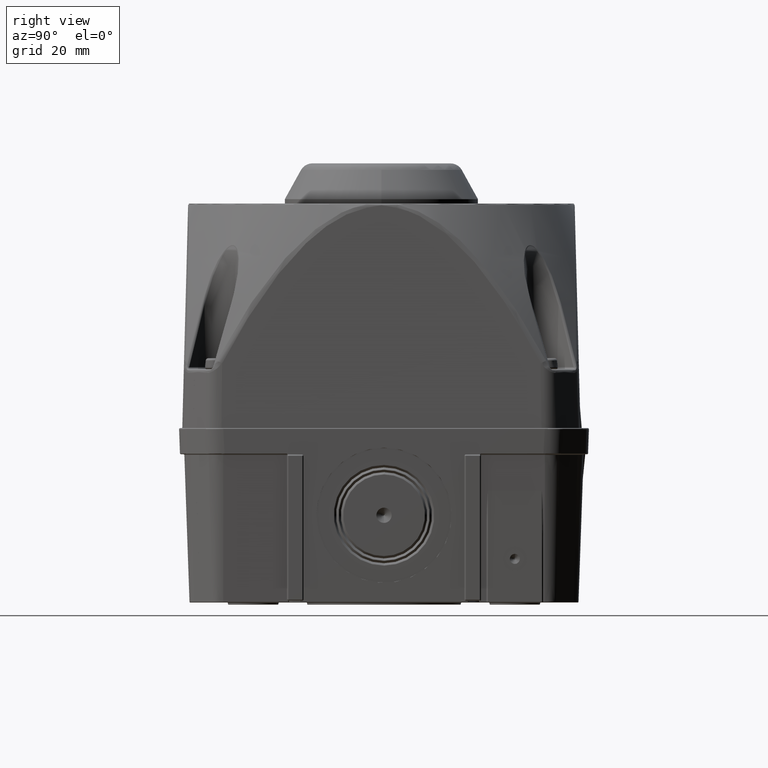
[diagram: clean part render]
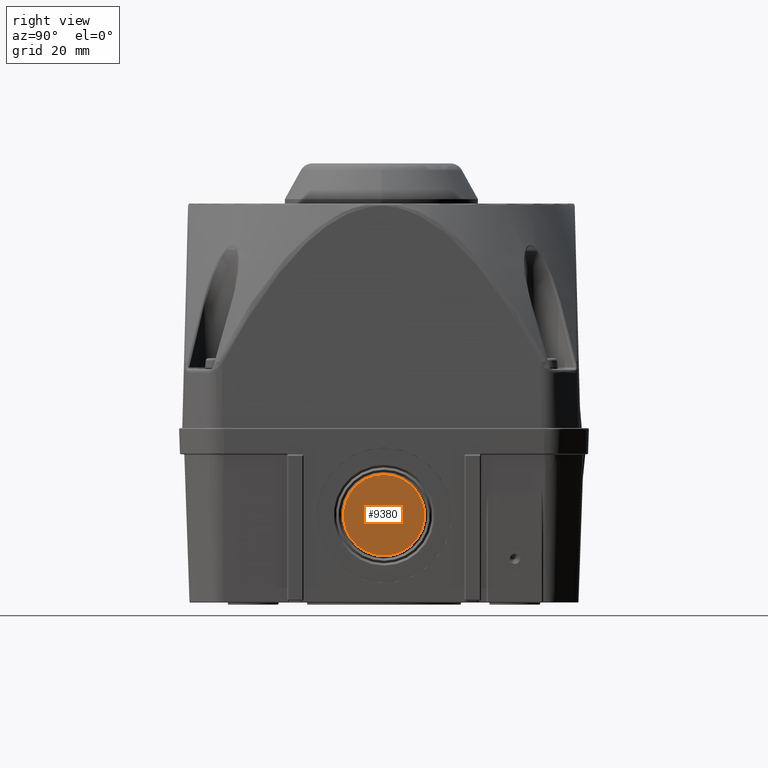
[diagram: same view with one face highlighted and labeled with its STEP entity id]
A machine part, right view. The second image highlights one B-rep face of the part: STEP entity #9380.
In plain terms, the highlighted planar face has unit normal (1, 0, 0).
Its self-contained STEP definition (entity closure, byte-faithful):
#2829=PLANE('',#34902);
#3345=FACE_BOUND('',#13636,.T.);
#3346=FACE_BOUND('',#13637,.T.);
#9380=ADVANCED_FACE('',(#3345,#3346),#2829,.T.);
#13636=EDGE_LOOP('',(#21851));
#13637=EDGE_LOOP('',(#21852));
#21851=ORIENTED_EDGE('',*,*,#29745,.T.);
#21852=ORIENTED_EDGE('',*,*,#29744,.T.);
#25501=VERTEX_POINT('',#66314);
#25502=VERTEX_POINT('',#66317);
#29744=EDGE_CURVE('',#25501,#25501,#31596,.T.);
#29745=EDGE_CURVE('',#25502,#25502,#31597,.T.);
#31596=CIRCLE('',#34899,1.75);
#31597=CIRCLE('',#34901,9.31715728752538);
#34899=AXIS2_PLACEMENT_3D('',#66313,#43113,#43114);
#34901=AXIS2_PLACEMENT_3D('',#66316,#43117,#43118);
#34902=AXIS2_PLACEMENT_3D('',#66318,#43119,#43120);
#43113=DIRECTION('',(-1.,0.,0.));
#43114=DIRECTION('',(0.,0.,-1.));
#43117=DIRECTION('',(1.,0.,0.));
#43118=DIRECTION('',(0.,0.,1.));
#43119=DIRECTION('',(1.,0.,0.));
#43120=DIRECTION('',(0.,0.,-1.));
#66313=CARTESIAN_POINT('',(45.7000000000001,0.600000000000004,-100.));
#66314=CARTESIAN_POINT('',(45.7000000000001,0.600000000000004,-101.75));
#66316=CARTESIAN_POINT('',(45.7000000000001,0.600000000000004,-100.));
#66317=CARTESIAN_POINT('',(45.7000000000001,0.600000000000004,-90.6828427124746));
#66318=CARTESIAN_POINT('',(45.7000000000001,0.600000000000004,-100.));